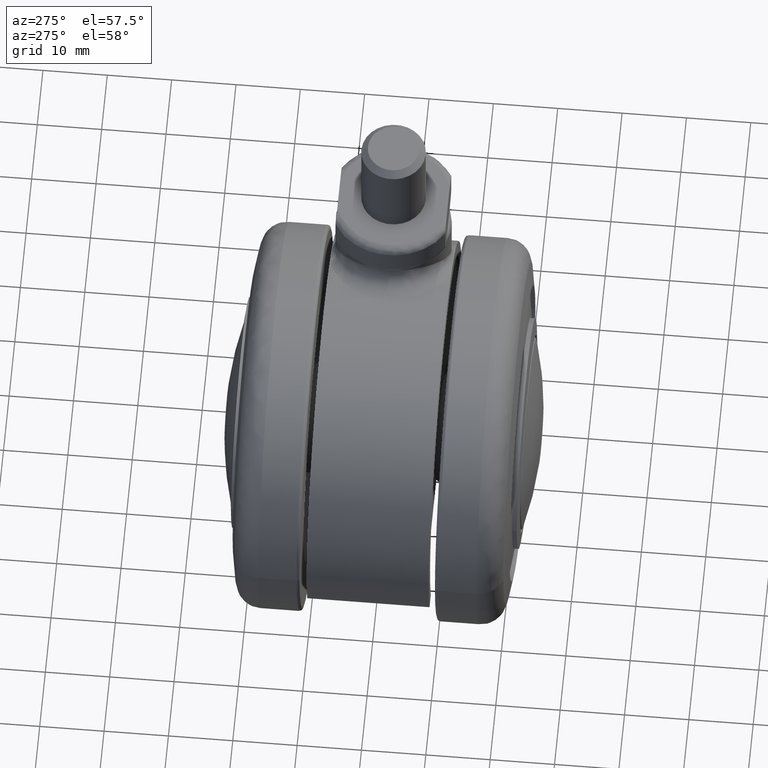
[diagram: clean part render]
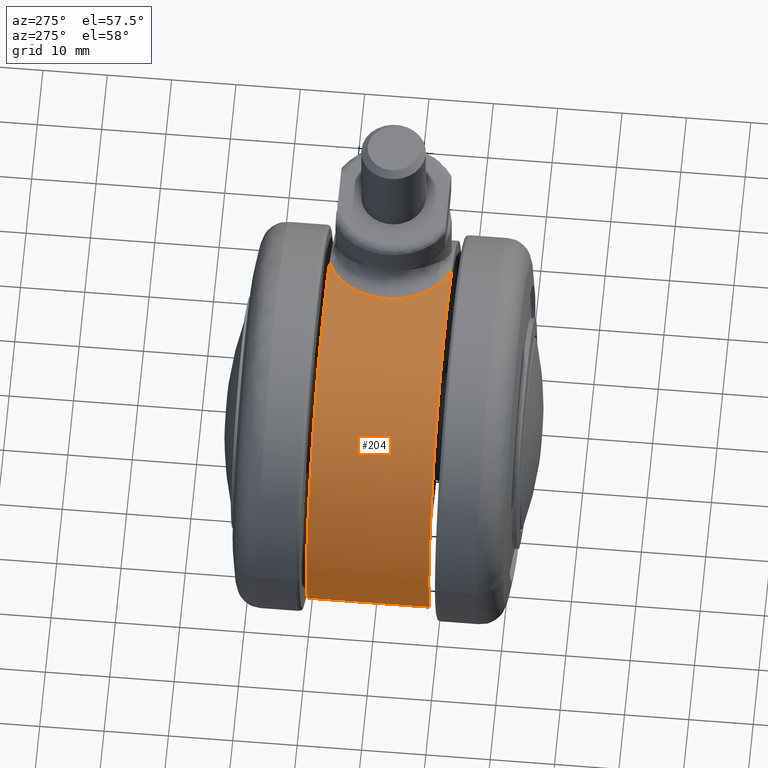
[diagram: same view with one face highlighted and labeled with its STEP entity id]
A machine part, auxiliary view. The second image highlights one B-rep face of the part: STEP entity #204.
In plain terms, the highlighted cylindrical surface (partial cylindrical patch) has radius 29 mm, axis along (0, -1, 0).
Its self-contained STEP definition (entity closure, byte-faithful):
#204=ADVANCED_FACE('',(#774),#773,.T.);
#773=CYLINDRICAL_SURFACE('',#2879,2.90000000000E+01);
#774=FACE_OUTER_BOUND('',#2880,.T.);
#2876=CARTESIAN_POINT('',(0.00000000000E+00,0.00000000000E+00,0.00000000000E+00));
#2877=DIRECTION('',(-0.00000000000E+00,-1.00000000000E+00,0.00000000000E+00));
#2878=DIRECTION('',(1.00000000000E+00,-0.00000000000E+00,-0.00000000000E+00));
#2879=AXIS2_PLACEMENT_3D('',#2876,#2877,#2878);
#2880=EDGE_LOOP('',(#4752,#4753,#4754,#4755,#4756));
#4752=ORIENTED_EDGE('',*,*,#5258,.T.);
#4753=ORIENTED_EDGE('',*,*,#5357,.T.);
#4754=ORIENTED_EDGE('',*,*,#5253,.F.);
#4755=ORIENTED_EDGE('',*,*,#5353,.T.);
#4756=ORIENTED_EDGE('',*,*,#5221,.T.);
#5221=EDGE_CURVE('',#5584,#5585,#5586,.T.);
#5253=EDGE_CURVE('',#5799,#5806,#5807,.T.);
#5258=EDGE_CURVE('',#5585,#5834,#5841,.T.);
#5353=EDGE_CURVE('',#5799,#5584,#6472,.T.);
#5357=EDGE_CURVE('',#5834,#5806,#6496,.T.);
#5584=VERTEX_POINT('',#7996);
#5585=VERTEX_POINT('',#7997);
#5586=(BOUNDED_CURVE() B_SPLINE_CURVE(3,(#7998,#7999,#8000,#8001,#8002,#8003,#8004,#8005,#8006,#8007,#8008,#8009,#8010,#8011,#8012,#8013,#8014,#8015,#8016,#8017,#8018,#8019,#8020,#8021,#8022,#8023,#8024,#8025,#8026,#8027,#8028,#8029,#8030,#8031,#8032,#8033,#8034,#8035,#8036,#8037,#8038,#8039,#8040,#8041,#8042,#8043,#8044,#8045,#8046,#8047),.UNSPECIFIED.,.F.,.F.) B_SPLINE_CURVE_WITH_KNOTS((4,2,2,2,2,2,2,2,2,2,2,2,2,1,1,2,2,1,1,2,2,1,1,1,2,2,1,1,1,4),(4.98903402995E-01,5.30221940308E-01,5.61540477621E-01,5.77199746277E-01,5.92859014933E-01,6.24177552246E-01,6.39836820903E-01,6.55496089559E-01,6.86814626872E-01,7.02473895528E-01,7.18133164185E-01,7.49451701497E-01,7.57281335826E-01,7.65110970154E-01,7.80770238810E-01,8.12088776123E-01,8.19918410451E-01,8.27748044780E-01,8.43407313436E-01,8.74725850749E-01,8.78640667913E-01,8.82555485077E-01,8.90385119405E-01,9.06044388062E-01,9.37362925374E-01,9.41277742538E-01,9.45192559703E-01,9.53022194031E-01,9.68681462687E-01,1.00000000000E+00),.UNSPECIFIED.) CURVE() GEOMETRIC_REPRESENTATION_ITEM() RATIONAL_B_SPLINE_CURVE((1.00000000000E+00,1.00000000000E+00,1.00000000000E+00,1.00000000000E+00,1.00000000000E+00,1.00000000000E+00,1.00000000000E+00,1.00000000000E+00,1.00000000000E+00,1.00000000000E+00,1.00000000000E+00,1.00000000000E+00,1.00000000000E+00,1.00000000000E+00,1.00000000000E+00,1.00000000000E+00,1.00000000000E+00,1.00000000000E+00,1.00000000000E+00,1.00000000000E+00,1.00000000000E+00,1.00000000000E+00,1.00000000000E+00,1.00000000000E+00,1.00000000000E+00,1.00000000000E+00,1.00000000000E+00,1.00000000000E+00,1.00000000000E+00,1.00000000000E+00,1.00000000000E+00,1.00000000000E+00,1.00000000000E+00,1.00000000000E+00,1.00000000000E+00,1.00000000000E+00,1.00000000000E+00,1.00000000000E+00,1.00000000000E+00,1.00000000000E+00,1.00000000000E+00,1.00000000000E+00,1.00000000000E+00,1.00000000000E+00,1.00000000000E+00,1.00000000000E+00,1.00000000000E+00,1.00000000000E+00,1.00000000000E+00,1.00000000000E+00)) REPRESENTATION_ITEM('') );
#5799=VERTEX_POINT('',#8302);
#5806=VERTEX_POINT('',#8307);
#5807=CIRCLE('',#8311,2.90000000000E+01);
#5834=VERTEX_POINT('',#8326);
#5841=CIRCLE('',#8334,2.90000000000E+01);
#6472=(BOUNDED_CURVE() B_SPLINE_CURVE(3,(#8837,#8838,#8839,#8840,#8841,#8842,#8843,#8844,#8845,#8846,#8847,#8848,#8849,#8850,#8851,#8852,#8853,#8854,#8855,#8856,#8857,#8858,#8859,#8860,#8861,#8862,#8863,#8864,#8865,#8866,#8867,#8868,#8869,#8870,#8871,#8872,#8873,#8874,#8875,#8876,#8877,#8878,#8879,#8880,#8881),.UNSPECIFIED.,.F.,.F.) B_SPLINE_CURVE_WITH_KNOTS((4,2,2,1,1,1,1,2,2,1,1,1,2,2,1,1,1,2,2,1,2,2,2,2,2,2,2,4),(0.00000000000E+00,6.23629253744E-02,6.43117667923E-02,6.62606082103E-02,7.01582910462E-02,7.79536567180E-02,9.35443880616E-02,1.24725850749E-01,1.28623533585E-01,1.32521216421E-01,1.40316582092E-01,1.55907313436E-01,1.87088776123E-01,1.90986458959E-01,1.94884141795E-01,2.02679507467E-01,2.18270238810E-01,2.49451701497E-01,2.57247067169E-01,2.65042432841E-01,2.80633164185E-01,3.11814626872E-01,3.42996089559E-01,3.74177552246E-01,3.89768283590E-01,4.05359014933E-01,4.36540477621E-01,4.98903402995E-01),.UNSPECIFIED.) CURVE() GEOMETRIC_REPRESENTATION_ITEM() RATIONAL_B_SPLINE_CURVE((1.00000000000E+00,1.00000000000E+00,1.00000000000E+00,1.00000000000E+00,1.00000000000E+00,1.00000000000E+00,1.00000000000E+00,1.00000000000E+00,1.00000000000E+00,1.00000000000E+00,1.00000000000E+00,1.00000000000E+00,1.00000000000E+00,1.00000000000E+00,1.00000000000E+00,1.00000000000E+00,1.00000000000E+00,1.00000000000E+00,1.00000000000E+00,1.00000000000E+00,1.00000000000E+00,1.00000000000E+00,1.00000000000E+00,1.00000000000E+00,1.00000000000E+00,1.00000000000E+00,1.00000000000E+00,1.00000000000E+00,1.00000000000E+00,1.00000000000E+00,1.00000000000E+00,1.00000000000E+00,1.00000000000E+00,1.00000000000E+00,1.00000000000E+00,1.00000000000E+00,1.00000000000E+00,1.00000000000E+00,1.00000000000E+00,1.00000000000E+00,1.00000000000E+00,1.00000000000E+00,1.00000000000E+00,1.00000000000E+00,1.00000000000E+00)) REPRESENTATION_ITEM('') );
#6496=LINE('',#8894,#8895);
#7996=CARTESIAN_POINT('',(4.53139016589E+00,-5.18244260164E-02,2.86437864670E+01));
#7997=CARTESIAN_POINT('',(1.24260205401E+01,9.50000000000E+00,2.62029390248E+01));
#7998=CARTESIAN_POINT('',(4.53139016589E+00,-5.18244260164E-02,2.86437864670E+01));
#7999=CARTESIAN_POINT('',(4.52973208850E+00,2.56918385008E-01,2.86440487715E+01));
#8000=CARTESIAN_POINT('',(4.54274035119E+00,5.67600131728E-01,2.86420023255E+01));
#8001=CARTESIAN_POINT('',(4.59815020965E+00,1.18536873685E+00,2.86331591300E+01));
#8002=CARTESIAN_POINT('',(4.64053911768E+00,1.49365601546E+00,2.86263643871E+01));
#8003=CARTESIAN_POINT('',(4.72610032112E+00,1.95519139744E+00,2.86123192189E+01));
#8004=CARTESIAN_POINT('',(4.75730822862E+00,2.10396648984E+00,2.86071542477E+01));
#8005=CARTESIAN_POINT('',(4.82720659659E+00,2.40286076700E+00,2.85954425077E+01));
#8006=CARTESIAN_POINT('',(4.86556957764E+00,2.55120367352E+00,2.85889494176E+01));
#8007=CARTESIAN_POINT('',(4.99087794523E+00,2.99291969694E+00,2.85674346383E+01));
#8008=CARTESIAN_POINT('',(5.08804462322E+00,3.28298011766E+00,2.85503847049E+01));
#8009=CARTESIAN_POINT('',(5.25411756775E+00,3.71144535642E+00,2.85201229802E+01));
#8010=CARTESIAN_POINT('',(5.31109086909E+00,3.84884843397E+00,2.85095795446E+01));
#8011=CARTESIAN_POINT('',(5.43243721787E+00,4.12371901964E+00,2.84867063365E+01));
#8012=CARTESIAN_POINT('',(5.49615374041E+00,4.25947796009E+00,2.84744959456E+01));
#8013=CARTESIAN_POINT('',(5.69639336041E+00,4.66172572428E+00,2.84353583390E+01));
#8014=CARTESIAN_POINT('',(5.84200884991E+00,4.92318549085E+00,2.84059304156E+01));
#8015=CARTESIAN_POINT('',(6.07841708900E+00,5.30531702640E+00,2.83559399992E+01));
#8016=CARTESIAN_POINT('',(6.15813255840E+00,5.42771918282E+00,2.83387476674E+01));
#8017=CARTESIAN_POINT('',(6.32404523824E+00,5.67015476458E+00,2.83021848589E+01));
#8018=CARTESIAN_POINT('',(6.40949920688E+00,5.78898673561E+00,2.82829712135E+01));
#8019=CARTESIAN_POINT('',(6.67329620085E+00,6.13832518916E+00,2.82223259282E+01));
#8020=CARTESIAN_POINT('',(6.85907685444E+00,6.36167421213E+00,2.81778937258E+01));
#8021=CARTESIAN_POINT('',(7.10346952694E+00,6.62893139159E+00,2.81166011470E+01));
#8022=CARTESIAN_POINT('',(7.15014168703E+00,6.67878233553E+00,2.81047677651E+01));
#8023=CARTESIAN_POINT('',(7.24695911699E+00,6.77995222260E+00,2.80799587043E+01));
#8024=CARTESIAN_POINT('',(7.39377174161E+00,6.92992747981E+00,2.80419385039E+01));
#8025=CARTESIAN_POINT('',(7.74737789148E+00,7.26741273284E+00,2.79473975036E+01));
#8026=CARTESIAN_POINT('',(8.06917993406E+00,7.53533092609E+00,2.78557409903E+01));
#8027=CARTESIAN_POINT('',(8.34745212752E+00,7.74673226447E+00,2.77727099175E+01));
#8028=CARTESIAN_POINT('',(8.40057882651E+00,7.78617364523E+00,2.77566848158E+01));
#8029=CARTESIAN_POINT('',(8.51008763400E+00,7.86572085714E+00,2.77233058102E+01));
#8030=CARTESIAN_POINT('',(8.67532122277E+00,7.98305397990E+00,2.76724099725E+01));
#8031=CARTESIAN_POINT('',(9.06759519990E+00,8.24291740063E+00,2.75477281753E+01));
#8032=CARTESIAN_POINT('',(9.41514083539E+00,8.44180513433E+00,2.74302391812E+01));
#8033=CARTESIAN_POINT('',(9.68120150102E+00,8.57904476401E+00,2.73363369947E+01));
#8034=CARTESIAN_POINT('',(9.70755051972E+00,8.59245463782E+00,2.73269892107E+01));
#8035=CARTESIAN_POINT('',(9.76332304760E+00,8.62050943274E+00,2.73071126171E+01));
#8036=CARTESIAN_POINT('',(9.84722935588E+00,8.66218721344E+00,2.72770651399E+01));
#8037=CARTESIAN_POINT('',(1.00447338104E+01,8.75660448673E+00,2.72053083372E+01));
#8038=CARTESIAN_POINT('',(1.04465564373E+01,8.93411550664E+00,2.70550663155E+01));
#8039=CARTESIAN_POINT('',(1.08023806468E+01,9.06685604937E+00,2.69142541514E+01));
#8040=CARTESIAN_POINT('',(1.10746407114E+01,9.15670557640E+00,2.68021156533E+01));
#8041=CARTESIAN_POINT('',(1.11007764407E+01,9.16519446828E+00,2.67912988042E+01));
#8042=CARTESIAN_POINT('',(1.11570741613E+01,9.18323438819E+00,2.67679028943E+01));
#8043=CARTESIAN_POINT('',(1.12416620853E+01,9.20993821193E+00,2.67325941489E+01));
#8044=CARTESIAN_POINT('',(1.14400149055E+01,9.26975474119E+00,2.66486911021E+01));
#8045=CARTESIAN_POINT('',(1.18405759153E+01,9.37941822850E+00,2.64747264489E+01));
#8046=CARTESIAN_POINT('',(1.21902835151E+01,9.45632480983E+00,2.63147308017E+01));
#8047=CARTESIAN_POINT('',(1.24260205401E+01,9.50000000000E+00,2.62029390248E+01));
#8302=CARTESIAN_POINT('',(1.24266166040E+01,-9.50000000000E+00,2.62026563496E+01));
#8307=CARTESIAN_POINT('',(-2.77911305775E+01,-9.50000000000E+00,-8.28571428571E+00));
#8308=CARTESIAN_POINT('',(0.00000000000E+00,-9.50000000000E+00,0.00000000000E+00));
#8309=DIRECTION('',(0.00000000000E+00,-1.00000000000E+00,0.00000000000E+00));
#8310=DIRECTION('',(1.00000000000E+00,-0.00000000000E+00,-0.00000000000E+00));
#8311=AXIS2_PLACEMENT_3D('',#8308,#8309,#8310);
#8326=CARTESIAN_POINT('',(-2.77911305775E+01,9.50000000000E+00,-8.28571428571E+00));
#8331=CARTESIAN_POINT('',(0.00000000000E+00,9.50000000000E+00,0.00000000000E+00));
#8332=DIRECTION('',(0.00000000000E+00,-1.00000000000E+00,0.00000000000E+00));
#8333=DIRECTION('',(1.00000000000E+00,-0.00000000000E+00,-0.00000000000E+00));
#8334=AXIS2_PLACEMENT_3D('',#8331,#8332,#8333);
#8837=CARTESIAN_POINT('',(1.24266166040E+01,-9.50000000000E+00,2.62026563496E+01));
#8838=CARTESIAN_POINT('',(1.19563291877E+01,-9.41431901399E+00,2.64256900978E+01));
#8839=CARTESIAN_POINT('',(1.15027345255E+01,-9.30045082081E+00,2.66253325769E+01));
#8840=CARTESIAN_POINT('',(1.10543944322E+01,-9.15395618920E+00,2.68104565383E+01));
#8841=CARTESIAN_POINT('',(1.10383998335E+01,-9.14869027365E+00,2.68170466138E+01));
#8842=CARTESIAN_POINT('',(1.10085731064E+01,-9.13878231399E+00,2.68293044661E+01));
#8843=CARTESIAN_POINT('',(1.09638727337E+01,-9.12381091317E+00,2.68476313072E+01));
#8844=CARTESIAN_POINT('',(1.08598511145E+01,-9.08811141533E+00,2.68899761244E+01));
#8845=CARTESIAN_POINT('',(1.06529345668E+01,-9.01364750265E+00,2.69730084791E+01));
#8846=CARTESIAN_POINT('',(1.02436841890E+01,-8.85246000924E+00,2.71325554913E+01));
#8847=CARTESIAN_POINT('',(9.90100873275E+00,-8.69328272679E+00,2.72585181473E+01));
#8848=CARTESIAN_POINT('',(9.64828820135E+00,-8.56339147805E+00,2.73479692492E+01));
#8849=CARTESIAN_POINT('',(9.61750772901E+00,-8.54738012151E+00,2.73588106257E+01));
#8850=CARTESIAN_POINT('',(9.55860692520E+00,-8.51633616634E+00,2.73794449801E+01));
#8851=CARTESIAN_POINT('',(9.47054520810E+00,-8.46933925418E+00,2.74101349886E+01));
#8852=CARTESIAN_POINT('',(9.26710547397E+00,-8.35666293665E+00,2.74799361700E+01));
#8853=CARTESIAN_POINT('',(8.86846333021E+00,-8.11924287828E+00,2.76124761933E+01));
#8854=CARTESIAN_POINT('',(8.54117943430E+00,-7.89505295974E+00,2.77145636203E+01));
#8855=CARTESIAN_POINT('',(8.30317289633E+00,-7.71656701516E+00,2.77859331692E+01));
#8856=CARTESIAN_POINT('',(8.27457424704E+00,-7.69488140064E+00,2.77944643151E+01));
#8857=CARTESIAN_POINT('',(8.21948276031E+00,-7.65259689029E+00,2.78108059697E+01));
#8858=CARTESIAN_POINT('',(8.13722608143E+00,-7.58872377398E+00,2.78350719499E+01));
#8859=CARTESIAN_POINT('',(7.94796785620E+00,-7.43656204713E+00,2.78899922227E+01));
#8860=CARTESIAN_POINT('',(7.58022600455E+00,-7.11974077155E+00,2.79932298645E+01));
#8861=CARTESIAN_POINT('',(7.28374759695E+00,-6.82675484069E+00,2.80710717603E+01));
#8862=CARTESIAN_POINT('',(7.04733025546E+00,-6.57069721080E+00,2.81307218948E+01));
#8863=CARTESIAN_POINT('',(6.99778485662E+00,-6.51581155958E+00,2.81430883336E+01));
#8864=CARTESIAN_POINT('',(6.90238657343E+00,-6.40756709136E+00,2.81666375956E+01));
#8865=CARTESIAN_POINT('',(6.76105775835E+00,-6.24341630611E+00,2.82011390323E+01));
#8866=CARTESIAN_POINT('',(6.62506110857E+00,-6.07391327206E+00,2.82332565354E+01));
#8867=CARTESIAN_POINT('',(6.36024097497E+00,-5.72777087225E+00,2.82945254756E+01));
#8868=CARTESIAN_POINT('',(6.19326044325E+00,-5.48749416341E+00,2.83314203527E+01));
#8869=CARTESIAN_POINT('',(5.87871896063E+00,-4.98791052781E+00,2.83983541337E+01));
#8870=CARTESIAN_POINT('',(5.73128914260E+00,-4.72822215291E+00,2.84283506590E+01));
#8871=CARTESIAN_POINT('',(5.46224388571E+00,-4.19824570458E+00,2.84812690757E+01));
#8872=CARTESIAN_POINT('',(5.33967153051E+00,-3.92645924963E+00,2.85043949889E+01));
#8873=CARTESIAN_POINT('',(5.17388775483E+00,-3.50858222103E+00,2.85347865234E+01));
#8874=CARTESIAN_POINT('',(5.12005475292E+00,-3.36330582561E+00,2.85444842309E+01));
#8875=CARTESIAN_POINT('',(5.02079725211E+00,-3.07462413303E+00,2.85621101397E+01));
#8876=CARTESIAN_POINT('',(4.97450443747E+00,-2.92904688759E+00,2.85701978474E+01));
#8877=CARTESIAN_POINT('',(4.84566118064E+00,-2.48860595384E+00,2.85924319615E+01));
#8878=CARTESIAN_POINT('',(4.77314738395E+00,-2.19003306809E+00,2.86045564380E+01));
#8879=CARTESIAN_POINT('',(4.59591273799E+00,-1.27947762112E+00,2.86337550098E+01));
#8880=CARTESIAN_POINT('',(4.53469353421E+00,-6.66607434378E-01,2.86432638806E+01));
#8881=CARTESIAN_POINT('',(4.53139016589E+00,-5.18244260164E-02,2.86437864670E+01));
#8894=CARTESIAN_POINT('',(-2.77911305775E+01,9.50000000000E+00,-8.28571428571E+00));
#8895=VECTOR('',#8896,1.90000000000E+01);
#8896=DIRECTION('',(0.00000000000E+00,-1.00000000000E+00,0.00000000000E+00));